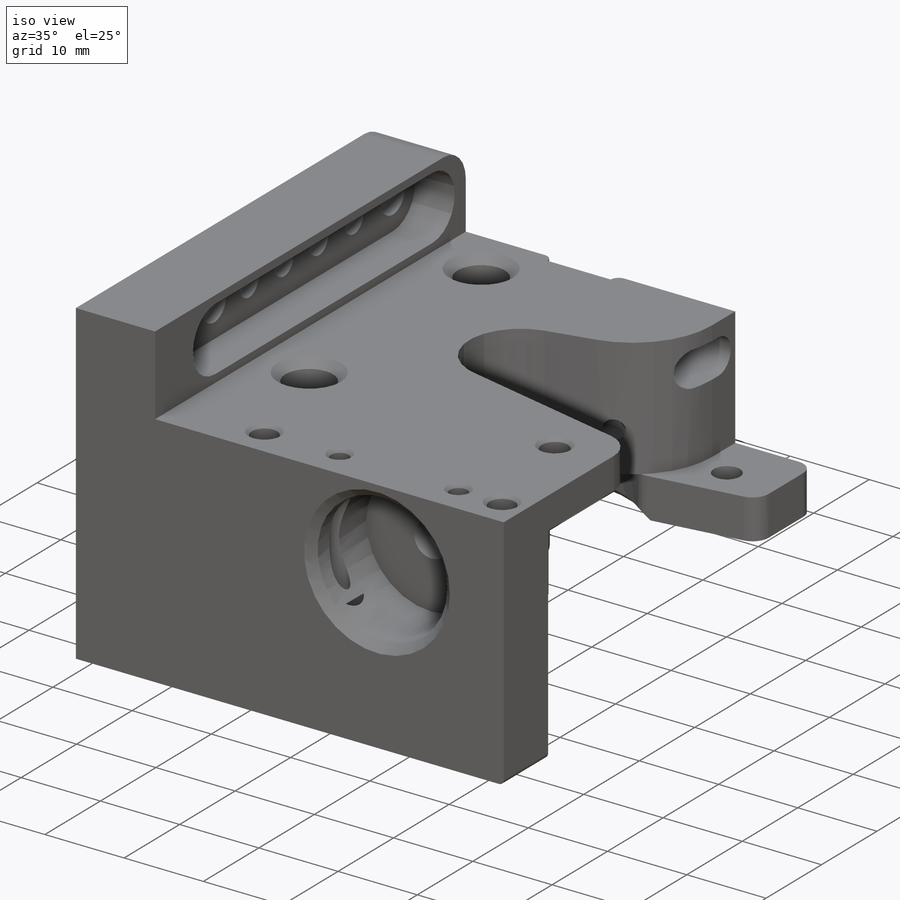
[diagram: iso view]
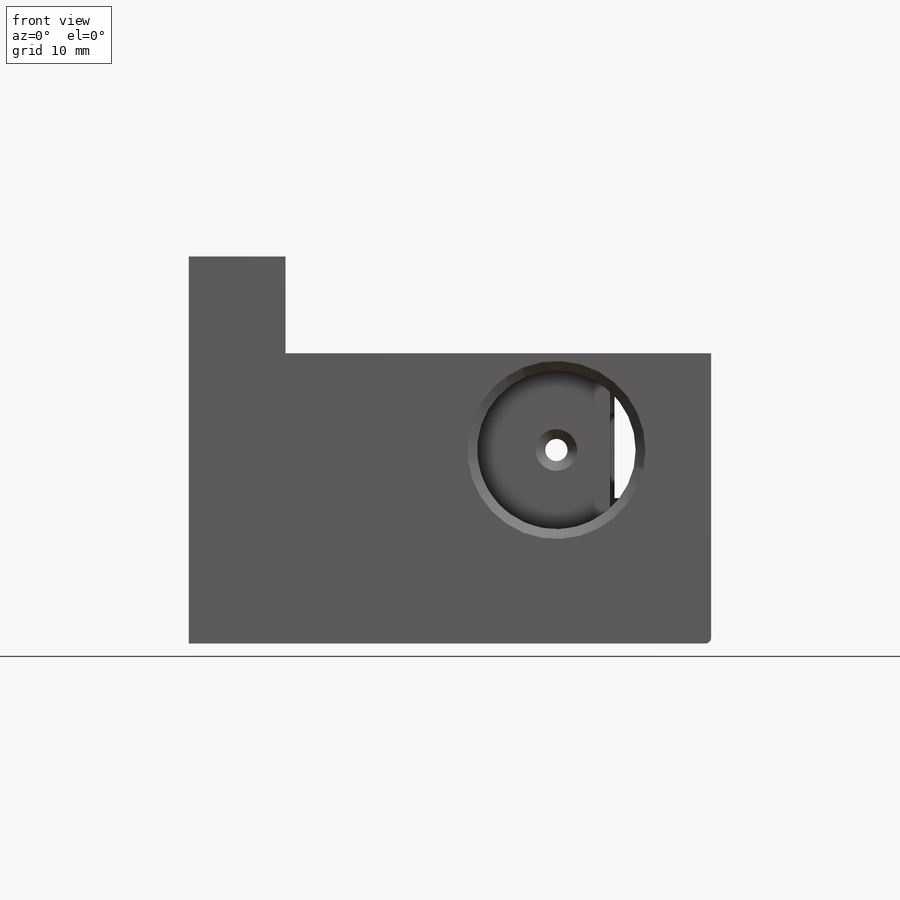
[diagram: front view]
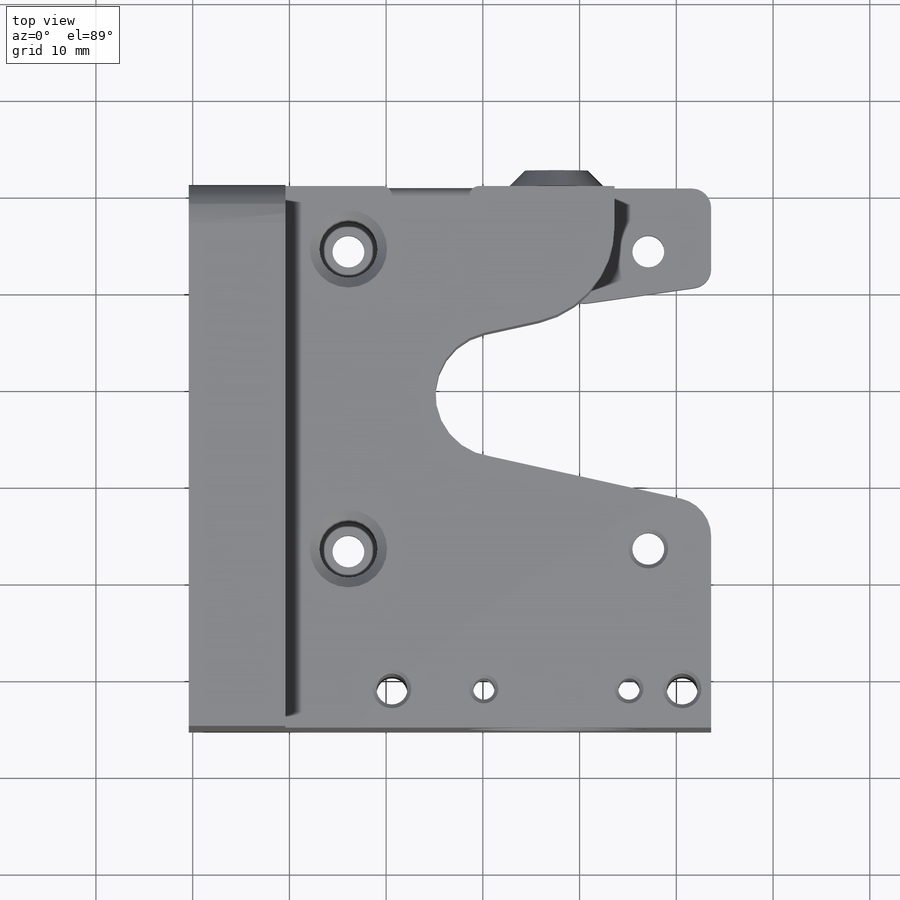
[diagram: top view]
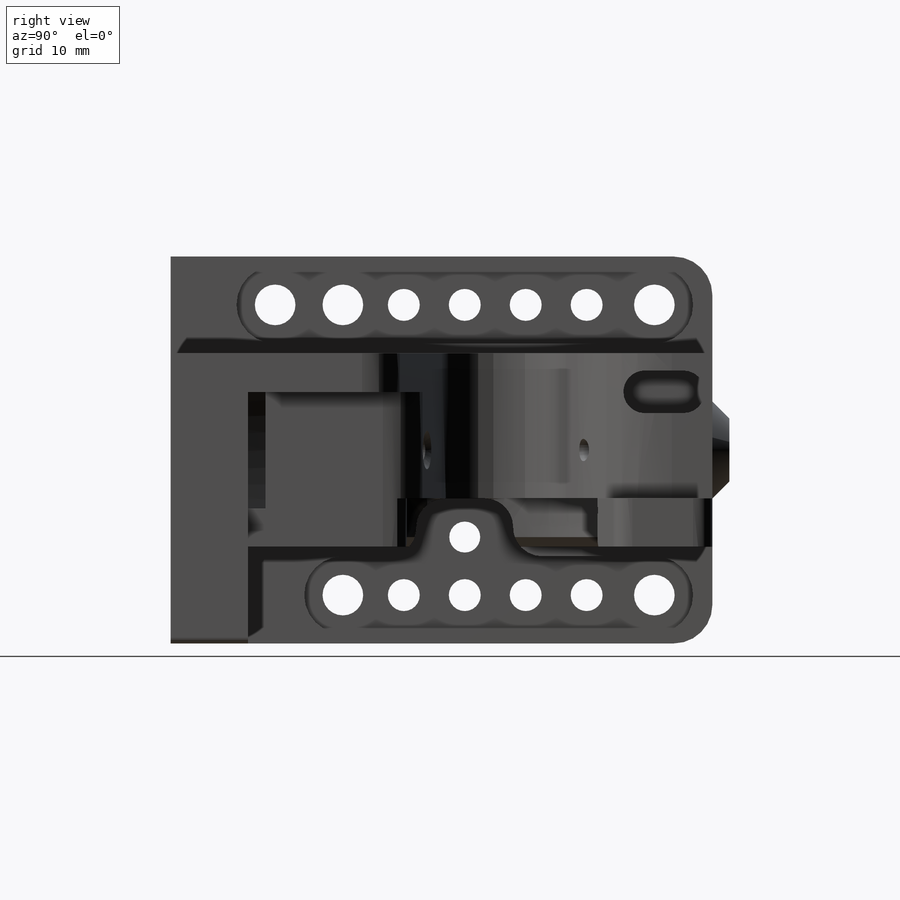
[diagram: right view]
SOLIDWORKS PART (.sldprt)
format: sldprt  version: not decoded by parser v0  size: 1,092,096 bytes
history: native  units: mm
features: sketch x39, cut_extrude x24, chamfer x16, extrude x11, fillet x10, plane x4, material x1 (+8 scaffold rows collapsed)
feature tree (113):
  scaffold x8  (default folders/planes/origin — collapsed)
  material  "Matériau <non spécifié>"
  plane  "Plan de face"
  plane  "Plan de dessus"
  plane  "Plan de droite"
  sketch  "Esquisse1"  dims[D1=44.0mm D2=44.0mm]
  extrude  "Boss.-Extru.1"  Depth=5mm
  sketch  "Esquisse3"  dims[D1=3.3mm D2=3.3mm D3=3.3mm D4=3.3mm D5=6.5mm D6=6.5mm D7=6.5mm D8=6.5mm D9=31.0mm D10=31.0mm D11=6.5mm D12=31.0mm]
  sketch  "Esquisse4"  dims[D1=26.0mm D2=22.0mm D3=22.0mm]
  cut_extrude  "Enlèv. mat.-Extru.1"  [1 undecoded]
  sketch  "Esquisse5"  dims[D1=6.5mm D2=22.0mm D3=18.0mm]
  extrude  "Boss.-Extru.2"  Depth=15mm
  sketch  "Esquisse6"  dims[D1=10.0mm D2=7.0mm D3=14.0mm]
  cut_extrude  "Enlèv. mat.-Extru.2"  [1 undecoded]
  fillet  "Congé1"  Radius=10mm
  sketch  "Esquisse7"  dims[D1=18.0mm]
  cut_extrude  "Enlèv. mat.-Extru.3"  [1 undecoded]
  fillet  "Congé2"  Radius=2mm
  sketch  "Esquisse11"
  extrude  "Boss.-Extru.3"  Depth=12mm
  sketch  "Esquisse12"  dims[D1=16.4mm D2=28.0mm D3=10.0mm]
  cut_extrude  "Enlèv. mat.-Extru.6"  Depth=9.8mm
  sketch  "Esquisse13"  dims[D1=2.3mm D2=0.0mm]
  cut_extrude  "Enlèv. mat.-Extru.7"  [1 undecoded]
  sketch  "Esquisse10"  dims[D1=8.0mm]
  cut_extrude  "Enlèv. mat.-Extru.8"  Depth=16mm
  fillet  "Congé4"  Radius=2mm
  cut_extrude  "Enlèv. mat.-Extru.9"  [1 undecoded]
  sketch  "Esquisse14"  dims[D1=24.0mm D2=5.0mm]
  cut_extrude  "Enlèv. mat.-Extru.10"  [1 undecoded]
  fillet  "Congé7"  Radius=4mm
  fillet  "Congé8"  Radius=4.2mm
  sketch  "Esquisse16"  dims[D1=6.0mm]
  cut_extrude  "Enlèv. mat.-Extru.13"  Depth=16mm
  chamfer  "Chanfrein1"  Distance=0.4mm Angle=45deg
  chamfer  "Chanfrein2"  Distance=0.4mm Angle=45deg
  chamfer  "Chanfrein3"  Distance=1mm Angle=45deg
  chamfer  "Chanfrein4"  Distance=1mm Angle=45deg
  chamfer  "Chanfrein5"  Distance=1mm Angle=45deg
  chamfer  "Chanfrein6"  Distance=1mm Angle=45deg
  chamfer  "Chanfrein7"  Distance=1mm Angle=45deg
  sketch  "Esquisse17"  dims[D1=2.2mm D2=2.2mm D3=15.0mm D4=20.5mm D5=4.0mm D6=4.0mm]
  cut_extrude  "Enlèv. mat.-Extru.14"  [1 undecoded]
  chamfer  "Chanfrein8"  Distance=0.4mm Angle=45deg
  chamfer  "Chanfrein9"  Distance=1mm Angle=45deg
  sketch  "Esquisse18"
  extrude  "Boss.-Extru.4"  Depth=16mm
  sketch  "Esquisse20"  dims[D1=4.2mm D2=4.2mm D3=10.0mm D4=10.0mm D5=50.0mm D6=5.0mm D7=5.0mm]
  sketch  "Esquisse22"
  fillet  "Congé12"  Radius=4mm
  sketch  "Esquisse24"
  extrude  "Boss.-Extru.6"  Depth=10mm
  sketch  "Esquisse26"  dims[D1=42.0mm D2=42.0mm D3=5.5mm D4=5.5mm]
  sketch  "Esquisse27"
  cut_extrude  "Enlèv. mat.-Extru.19"  [1 undecoded]
  sketch  "Esquisse29"
  extrude  "Boss.-Extru.9"  Depth=10mm
  sketch  "Esquisse30"  dims[D1=10.0mm]
  extrude  "Boss.-Extru.10"  Depth=10mm
  fillet  "Congé15"  Radius=4mm
  sketch  "Esquisse31"  dims[D1=6.0mm]
  cut_extrude  "Enlèv. mat.-Extru.20"  Depth=16mm
  chamfer  "Chanfrein10"  Distance=1mm Angle=45deg
  sketch  "Esquisse32"  dims[D1=3.3mm D2=3.3mm D3=3.3mm D4=4.2mm D8=3.3mm D9=4.2mm D13=4.2mm D16=4.2mm D17=3.3mm D18=3.3mm D19=3.3mm D20=3.3mm D21=4.2mm D5=6.3mm D6=6.3mm D7=6.3mm D10=6.3mm D11=7.0mm D12=6.0mm D14=7.0mm D15=5.0mm D22=6.3mm D23=6.3mm D24=6.3mm D25=6.3mm D26=7.0mm D27=6.0mm D28=5.0mm]
  cut_extrude  "Enlèv. mat.-Extru.21"  [1 undecoded]
  sketch  "Esquisse34"  dims[D1=1.0mm]
  cut_extrude  "Enlèv. mat.-Extru.22"  Depth=5mm
  sketch  "Esquisse35"  dims[D1=1.0mm]
  cut_extrude  "Enlèv. mat.-Extru.23"  [1 undecoded]
  sketch  "Esquisse36"  dims[D1=8.0mm D2=10.0mm D3=11.0mm D4=8.0mm]
  cut_extrude  "Enlèv. mat.-Extru.24"  Depth=12mm
  sketch  "Esquisse37"  dims[D1=~6.640726mm D2=4.0mm D3=5.0mm D4=4.0mm]
  cut_extrude  "Enlèv. mat.-Extru.25"  [1 undecoded]
  fillet  "Congé16"  Radius=1mm
  sketch  "Esquisse38"  dims[D1=0.4mm]
  extrude  "Boss.-Extru.11"  [1 undecoded]
  sketch  "Esquisse39"  dims[D1=3.5mm]
  extrude  "Boss.-Extru.12"  Depth=0.3mm
  sketch  "Esquisse40"  dims[D1=0.4mm]
  extrude  "Boss.-Extru.13"  [1 undecoded]
  chamfer  "Chanfrein11"  Distance=0.4mm Angle=45deg
  sketch  "Esquisse45"
  cut_extrude  "Enlèv. mat.-Extru.27"  [1 undecoded]
  sketch  "Esquisse46"
  cut_extrude  "Enlèv. mat.-Extru.28"  [1 undecoded]
  chamfer  "Chanfrein12"  Distance=0.4mm Angle=45deg
  sketch  "Esquisse47"  dims[c1.D1=2.0mm c1.D2=2.0mm c2.D1=6.5mm c2.D2=10.0mm c2.D3=14.0mm c2.D4=7.0mm c2.D5=6.0mm]
  sketch  "Esquisse49"  dims[c1.D1=3.2mm c1.D2=3.2mm c1.D4=3.2mm c1.D3=30.0mm c2.D4=3.0mm]
  cut_extrude  "Enlèv. mat.-Extru.31"  [1 undecoded]
  chamfer  "Chanfrein13"  Distance=0.4mm Angle=45deg
  fillet  "Congé17"  Radius=0.6mm
  cut_extrude  "Enlèv. mat.-Extru.32"  Depth=6mm
  chamfer  "Chanfrein14"  Distance=4.6mm Angle=45deg
  sketch  "Esquisse51"  dims[D1=10.0mm D2=6.5mm]
  extrude  "Boss.-Extru.15"  Depth=2mm
  chamfer  "Chanfrein15"  Distance=2mm Angle=45deg
  sketch  "Esquisse52"  dims[D1=5.0mm D2=5.0mm]
  cut_extrude  "Enlèv. mat.-Extru.33"  Depth=14mm
  chamfer  "Chanfrein16"  Distance=1mm Angle=45deg
  plane  "Plan1"
  sketch  "Esquisse53"
  sketch  "Esquisse54"  dims[D1=3.2mm D2=6.0mm]
  cut_extrude  "Enlèv. mat.-Extru.34"  [1 undecoded]
  sketch  "Esquisse55"  dims[D1=10.0mm D2=5.0mm D3=10.0mm]
  cut_extrude  "Enlèv. mat.-Extru.35"  Depth=5mm
  fillet  "Congé18"  Radius=3mm
decode coverage: 74 of 100 modeling features carry decoded parameters
note: ~ marks probable driven/reference dimensions
note: 17 parameter values undecoded
summary: no parameter record found for 17 features
note: suppression state not decoded; provenance and decode notes live in map.json
